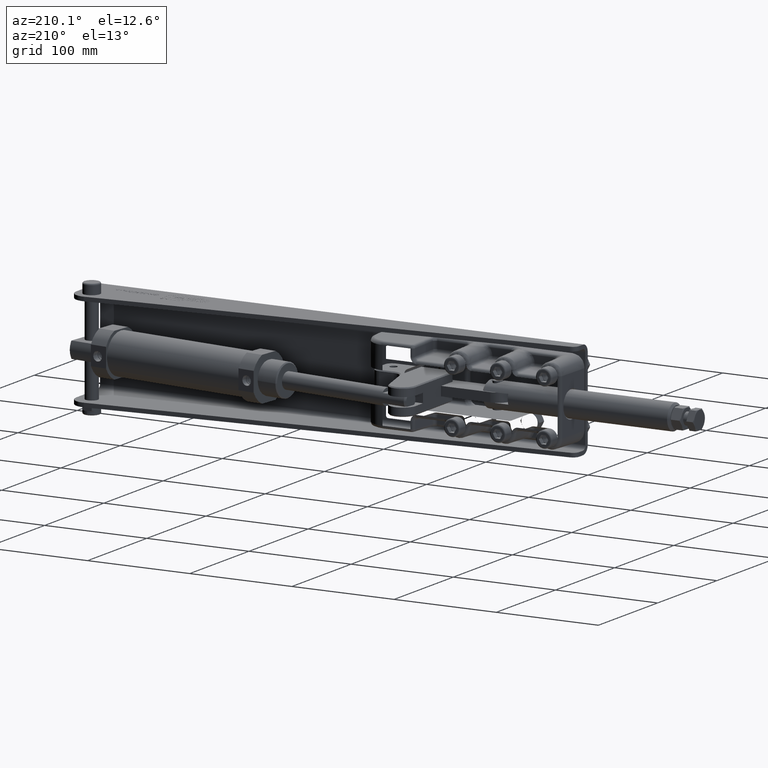
[diagram: clean part render]
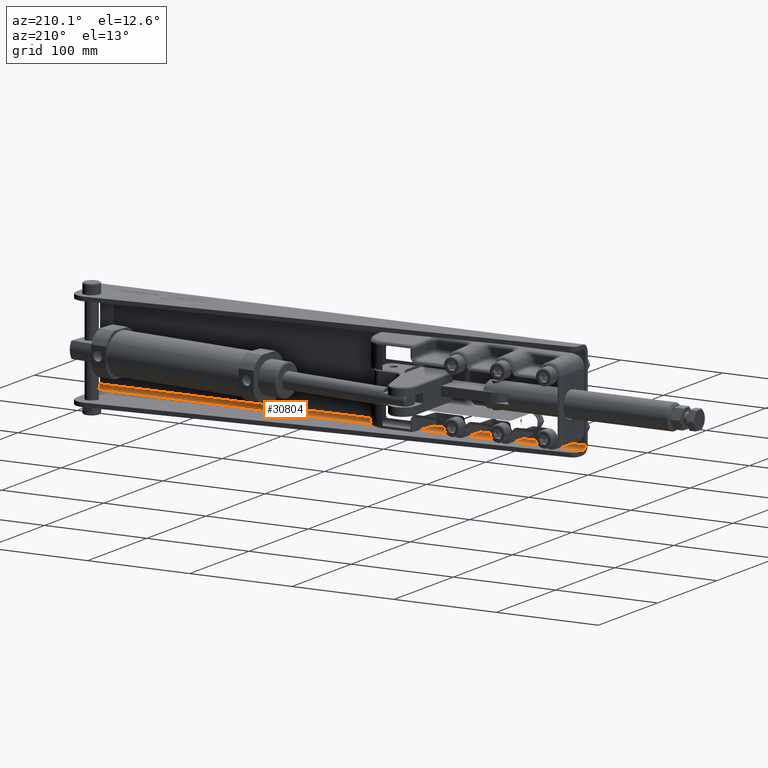
[diagram: same view with one face highlighted and labeled with its STEP entity id]
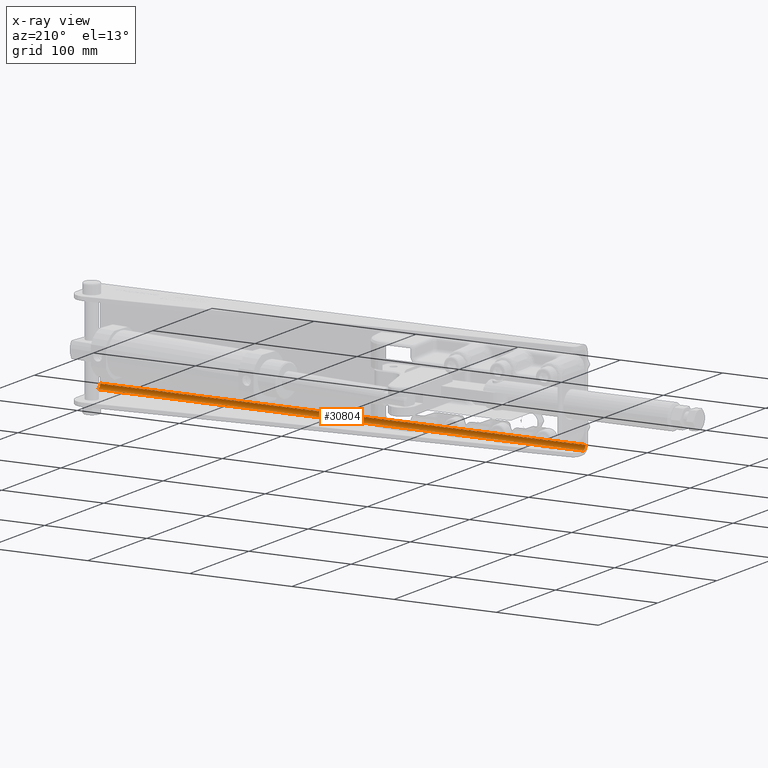
[diagram: x-ray of the same camera — body ghosted, the highlighted face saturated]
A machine part, auxiliary view. The second image highlights one B-rep face of the part: STEP entity #30804.
The next image is the same camera in x-ray: the body ghosted, the highlighted face saturated — about 0% of this face is hidden behind the body in this view.
In plain terms, the highlighted cylindrical surface (edge-blend (fillet) strip) has radius 4 mm, axis along (-1, 0, 0).
Its self-contained STEP definition (entity closure, byte-faithful):
#134 = EDGE_LOOP ( 'NONE', ( #20900, #16676, #58612, #15466 ) ) ;
#819 = DIRECTION ( 'NONE',  ( -1.000000000000000000, 0.0000000000000000000, 0.0000000000000000000 ) ) ;
#1015 = LINE ( 'NONE', #57256, #24049 ) ;
#2225 = DIRECTION ( 'NONE',  ( -1.000000000000000000, 0.0000000000000000000, 0.0000000000000000000 ) ) ;
#3056 = CARTESIAN_POINT ( 'NONE',  ( 377.0000000000000000, 5.000000000000034600, -40.00000000000003600 ) ) ;
#3123 = EDGE_CURVE ( 'NONE', #5078, #37049, #48925, .T. ) ;
#5078 = VERTEX_POINT ( 'NONE', #21565 ) ;
#7591 = CARTESIAN_POINT ( 'NONE',  ( -98.00000000000000000, 5.000000000000034600, -44.00000000000004300 ) ) ;
#7677 = DIRECTION ( 'NONE',  ( 0.0000000000000000000, 0.0000000000000000000, 1.000000000000000000 ) ) ;
#8473 = AXIS2_PLACEMENT_3D ( 'NONE', #3056, #35162, #7677 ) ;
#12333 = AXIS2_PLACEMENT_3D ( 'NONE', #20810, #52911, #25408 ) ;
#12662 = CARTESIAN_POINT ( 'NONE',  ( 377.0000000000000000, 5.000000000000034600, -40.00000000000003600 ) ) ;
#15231 = VECTOR ( 'NONE', #819, 1000.000000000000000 ) ;
#15436 = CARTESIAN_POINT ( 'NONE',  ( -98.00000000000000000, 1.000000000000031300, -40.00000000000003600 ) ) ;
#15466 = ORIENTED_EDGE ( 'NONE', *, *, #48167, .T. ) ;
#16676 = ORIENTED_EDGE ( 'NONE', *, *, #25346, .F. ) ;
#20810 = CARTESIAN_POINT ( 'NONE',  ( -98.00000000000000000, 5.000000000000034600, -40.00000000000003600 ) ) ;
#20900 = ORIENTED_EDGE ( 'NONE', *, *, #42603, .F. ) ;
#21565 = CARTESIAN_POINT ( 'NONE',  ( 377.0000000000000000, 1.000000000000031300, -40.00000000000003600 ) ) ;
#24049 = VECTOR ( 'NONE', #2225, 1000.000000000000000 ) ;
#24171 = CARTESIAN_POINT ( 'NONE',  ( 377.0000000000000000, 5.000000000000034600, -44.00000000000004300 ) ) ;
#25346 = EDGE_CURVE ( 'NONE', #5078, #52100, #51925, .T. ) ;
#25408 = DIRECTION ( 'NONE',  ( 0.0000000000000000000, 0.0000000000000000000, 1.000000000000000000 ) ) ;
#26578 = DIRECTION ( 'NONE',  ( 0.0000000000000000000, 0.0000000000000000000, 1.000000000000000000 ) ) ;
#28246 = CYLINDRICAL_SURFACE ( 'NONE', #57944, 4.000000000000003600 ) ;
#29239 = CIRCLE ( 'NONE', #12333, 4.000000000000003600 ) ;
#30804 = ADVANCED_FACE ( 'NONE', ( #52683 ), #28246, .F. ) ;
#35162 = DIRECTION ( 'NONE',  ( 1.000000000000000000, -0.0000000000000000000, -0.0000000000000000000 ) ) ;
#37049 = VERTEX_POINT ( 'NONE', #24171 ) ;
#39514 = VERTEX_POINT ( 'NONE', #7591 ) ;
#42603 = EDGE_CURVE ( 'NONE', #52100, #39514, #29239, .T. ) ;
#48167 = EDGE_CURVE ( 'NONE', #37049, #39514, #1015, .T. ) ;
#48925 = CIRCLE ( 'NONE', #8473, 4.000000000000003600 ) ;
#51255 = CARTESIAN_POINT ( 'NONE',  ( 377.0000000000000000, 1.000000000000031300, -40.00000000000003600 ) ) ;
#51925 = LINE ( 'NONE', #51255, #15231 ) ;
#52100 = VERTEX_POINT ( 'NONE', #15436 ) ;
#52683 = FACE_OUTER_BOUND ( 'NONE', #134, .T. ) ;
#52911 = DIRECTION ( 'NONE',  ( 1.000000000000000000, -0.0000000000000000000, -0.0000000000000000000 ) ) ;
#54070 = DIRECTION ( 'NONE',  ( -1.000000000000000000, 0.0000000000000000000, 0.0000000000000000000 ) ) ;
#57256 = CARTESIAN_POINT ( 'NONE',  ( 377.0000000000000000, 5.000000000000034600, -44.00000000000004300 ) ) ;
#57944 = AXIS2_PLACEMENT_3D ( 'NONE', #12662, #54070, #26578 ) ;
#58612 = ORIENTED_EDGE ( 'NONE', *, *, #3123, .T. ) ;